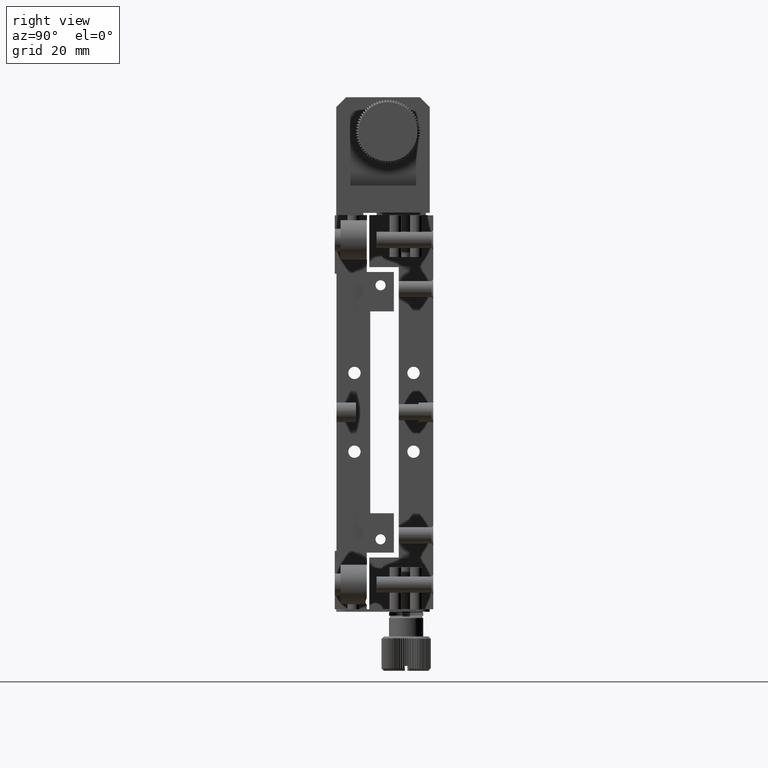
[diagram: clean part render]
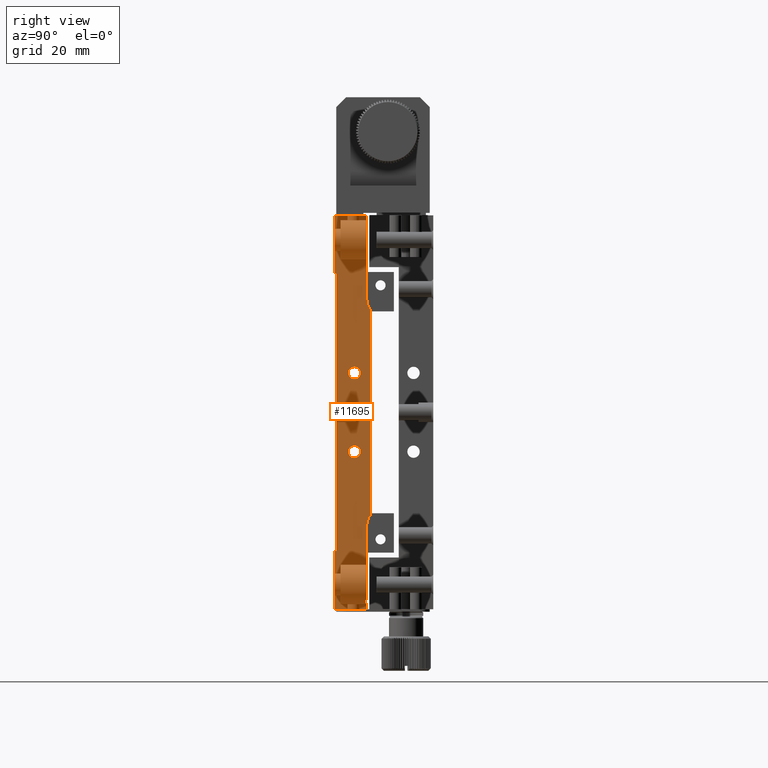
[diagram: same view with one face highlighted and labeled with its STEP entity id]
A machine part, right view. The second image highlights one B-rep face of the part: STEP entity #11695.
In plain terms, the highlighted planar face has unit normal (1, -0, 0).
Its self-contained STEP definition (entity closure, byte-faithful):
#475 = ORIENTED_EDGE ( 'NONE', *, *, #3142, .F. ) ;
#877 = DIRECTION ( 'NONE',  ( -0.000000000000000000, -0.000000000000000000, 1.000000000000000000 ) ) ;
#988 = ORIENTED_EDGE ( 'NONE', *, *, #25528, .F. ) ;
#1069 = CARTESIAN_POINT ( 'NONE',  ( 39.52852657937571479, -8.993175164426798318, 28.15000000000000213 ) ) ;
#1182 = ORIENTED_EDGE ( 'NONE', *, *, #21927, .F. ) ;
#1286 = DIRECTION ( 'NONE',  ( -1.000000000000000000, -0.000000000000000000, -0.000000000000000000 ) ) ;
#1457 = VERTEX_POINT ( 'NONE', #5814 ) ;
#1870 = VERTEX_POINT ( 'NONE', #18030 ) ;
#1893 = EDGE_LOOP ( 'NONE', ( #9945 ) ) ;
#1982 = DIRECTION ( 'NONE',  ( 0.000000000000000000, 1.000000000000000000, 0.000000000000000000 ) ) ;
#2102 = CARTESIAN_POINT ( 'NONE',  ( 39.52852657937571479, -2.843175164426796631, -22.89999999999999858 ) ) ;
#2245 = AXIS2_PLACEMENT_3D ( 'NONE', #25361, #1286, #11308 ) ;
#2332 = CIRCLE ( 'NONE', #16891, 1.249999999999987121 ) ;
#2373 = DIRECTION ( 'NONE',  ( -0.000000000000000000, -0.000000000000000000, 1.000000000000000000 ) ) ;
#2858 = VECTOR ( 'NONE', #3851, 1000.000000000000000 ) ;
#2903 = ORIENTED_EDGE ( 'NONE', *, *, #10530, .F. ) ;
#2985 = AXIS2_PLACEMENT_3D ( 'NONE', #3698, #11517, #11645 ) ;
#3142 = EDGE_CURVE ( 'NONE', #17711, #17711, #2332, .T. ) ;
#3230 = VECTOR ( 'NONE', #12874, 1000.000000000000000 ) ;
#3263 = CARTESIAN_POINT ( 'NONE',  ( 39.52852657937571479, -2.143175164426800894, 20.97386397157418614 ) ) ;
#3392 = PLANE ( 'NONE',  #7526 ) ;
#3698 = CARTESIAN_POINT ( 'NONE',  ( 39.52852657937571479, 0.1568248355732024812, -22.89999999999999858 ) ) ;
#3851 = DIRECTION ( 'NONE',  ( -0.000000000000000000, -1.000000000000000000, -0.000000000000000000 ) ) ;
#3938 = LINE ( 'NONE', #12281, #12016 ) ;
#4223 = EDGE_CURVE ( 'NONE', #23551, #16650, #5864, .T. ) ;
#4274 = CARTESIAN_POINT ( 'NONE',  ( 39.52852657937571479, 0.1568248355732024812, -40.00000000000000000 ) ) ;
#4496 = EDGE_CURVE ( 'NONE', #6538, #12901, #19895, .T. ) ;
#4499 = VECTOR ( 'NONE', #13315, 1000.000000000000000 ) ;
#4782 = AXIS2_PLACEMENT_3D ( 'NONE', #8253, #11910, #18156 ) ;
#5191 = EDGE_CURVE ( 'NONE', #1457, #25069, #19294, .T. ) ;
#5814 = CARTESIAN_POINT ( 'NONE',  ( 39.52852657937571479, -2.843175164426796631, 39.99999999999999289 ) ) ;
#5864 = LINE ( 'NONE', #22022, #24836 ) ;
#5917 = LINE ( 'NONE', #25727, #2858 ) ;
#5957 = CIRCLE ( 'NONE', #20533, 1.249999999999988010 ) ;
#6284 = LINE ( 'NONE', #22567, #21523 ) ;
#6335 = CARTESIAN_POINT ( 'NONE',  ( 39.52852657937571479, -9.343175164426799739, 28.15000000000000213 ) ) ;
#6527 = LINE ( 'NONE', #2102, #23432 ) ;
#6538 = VERTEX_POINT ( 'NONE', #9419 ) ;
#6871 = VECTOR ( 'NONE', #12379, 1000.000000000000000 ) ;
#7042 = CARTESIAN_POINT ( 'NONE',  ( 39.52852657937571479, -2.843175164426796631, -40.00000000000000711 ) ) ;
#7055 = DIRECTION ( 'NONE',  ( 1.000000000000000000, -0.000000000000000000, 0.000000000000000000 ) ) ;
#7113 = CARTESIAN_POINT ( 'NONE',  ( 39.52852657937571479, -5.343175164426797075, 8.000000000000000000 ) ) ;
#7526 = AXIS2_PLACEMENT_3D ( 'NONE', #16953, #7055, #9135 ) ;
#7783 = LINE ( 'NONE', #4274, #11550 ) ;
#8184 = VECTOR ( 'NONE', #877, 1000.000000000000000 ) ;
#8253 = CARTESIAN_POINT ( 'NONE',  ( 39.52852657937571479, 0.1568248355732024812, 22.89999999999999858 ) ) ;
#8375 = DIRECTION ( 'NONE',  ( 0.000000000000000000, 0.000000000000000000, -1.000000000000000000 ) ) ;
#8597 = DIRECTION ( 'NONE',  ( 0.000000000000000000, 0.000000000000000000, -1.000000000000000000 ) ) ;
#9064 = DIRECTION ( 'NONE',  ( 0.000000000000000000, 0.000000000000000000, -1.000000000000000000 ) ) ;
#9135 = DIRECTION ( 'NONE',  ( 0.000000000000000000, 0.000000000000000000, -1.000000000000000000 ) ) ;
#9364 = VERTEX_POINT ( 'NONE', #1069 ) ;
#9419 = CARTESIAN_POINT ( 'NONE',  ( 39.52852657937571479, -2.843175164426796631, -37.83856217223382856 ) ) ;
#9945 = ORIENTED_EDGE ( 'NONE', *, *, #14898, .F. ) ;
#10338 = ORIENTED_EDGE ( 'NONE', *, *, #17147, .F. ) ;
#10403 = ORIENTED_EDGE ( 'NONE', *, *, #5191, .F. ) ;
#10480 = ORIENTED_EDGE ( 'NONE', *, *, #15862, .F. ) ;
#10530 = EDGE_CURVE ( 'NONE', #12901, #18588, #17120, .T. ) ;
#10908 = LINE ( 'NONE', #22374, #3230 ) ;
#11308 = DIRECTION ( 'NONE',  ( 0.000000000000000000, 7.806255641895571971E-15, -1.000000000000000000 ) ) ;
#11320 = VERTEX_POINT ( 'NONE', #13151 ) ;
#11517 = DIRECTION ( 'NONE',  ( -1.000000000000000000, -0.000000000000000000, -0.000000000000000000 ) ) ;
#11550 = VECTOR ( 'NONE', #12226, 1000.000000000000000 ) ;
#11622 = EDGE_LOOP ( 'NONE', ( #475 ) ) ;
#11645 = DIRECTION ( 'NONE',  ( 0.000000000000000000, 0.000000000000000000, 1.000000000000000000 ) ) ;
#11695 = ADVANCED_FACE ( 'NONE', ( #15280, #22807, #13181 ), #3392, .F. ) ;
#11910 = DIRECTION ( 'NONE',  ( -1.000000000000000000, -0.000000000000000000, -0.000000000000000000 ) ) ;
#12003 = DIRECTION ( 'NONE',  ( -0.000000000000000000, 0.000000000000000000, -1.000000000000000000 ) ) ;
#12006 = DIRECTION ( 'NONE',  ( -0.000000000000000000, -0.000000000000000000, 1.000000000000000000 ) ) ;
#12016 = VECTOR ( 'NONE', #1982, 1000.000000000000000 ) ;
#12226 = DIRECTION ( 'NONE',  ( 0.000000000000000000, 1.000000000000000000, 0.000000000000000000 ) ) ;
#12281 = CARTESIAN_POINT ( 'NONE',  ( 39.52852657937571479, 0.1568248355732024812, 28.14999999999999858 ) ) ;
#12379 = DIRECTION ( 'NONE',  ( -0.000000000000000000, -1.925758743313507022E-18, -1.000000000000000000 ) ) ;
#12562 = CARTESIAN_POINT ( 'NONE',  ( 39.52852657937571479, -2.843175164426796631, -39.16143782776617144 ) ) ;
#12679 = CIRCLE ( 'NONE', #4782, 2.999999999999999112 ) ;
#12758 = EDGE_LOOP ( 'NONE', ( #23427, #14816, #1182, #23134, #988, #14848, #10403, #17845, #10480, #13994, #2903, #16931, #10338, #13537 ) ) ;
#12874 = DIRECTION ( 'NONE',  ( 0.000000000000000000, 0.000000000000000000, -1.000000000000000000 ) ) ;
#12901 = VERTEX_POINT ( 'NONE', #19580 ) ;
#13129 = VERTEX_POINT ( 'NONE', #16930 ) ;
#13151 = CARTESIAN_POINT ( 'NONE',  ( 39.52852657937571479, -5.343175164426797075, 6.750000000000012434 ) ) ;
#13181 = FACE_BOUND ( 'NONE', #11622, .T. ) ;
#13315 = DIRECTION ( 'NONE',  ( -0.000000000000000000, -1.000000000000000000, -0.000000000000000000 ) ) ;
#13537 = ORIENTED_EDGE ( 'NONE', *, *, #4223, .T. ) ;
#13799 = EDGE_CURVE ( 'NONE', #18588, #17823, #17990, .T. ) ;
#13839 = VERTEX_POINT ( 'NONE', #21898 ) ;
#13994 = ORIENTED_EDGE ( 'NONE', *, *, #13799, .F. ) ;
#14285 = VECTOR ( 'NONE', #2373, 1000.000000000000000 ) ;
#14492 = DIRECTION ( 'NONE',  ( -1.000000000000000000, -0.000000000000000000, -0.000000000000000000 ) ) ;
#14816 = ORIENTED_EDGE ( 'NONE', *, *, #24201, .F. ) ;
#14848 = ORIENTED_EDGE ( 'NONE', *, *, #22518, .F. ) ;
#14898 = EDGE_CURVE ( 'NONE', #11320, #11320, #5957, .T. ) ;
#14902 = CARTESIAN_POINT ( 'NONE',  ( 39.52852657937571479, 0.1568248355732024812, 39.99999999999999289 ) ) ;
#15280 = FACE_OUTER_BOUND ( 'NONE', #12758, .T. ) ;
#15862 = EDGE_CURVE ( 'NONE', #17823, #21260, #12679, .T. ) ;
#16444 = CARTESIAN_POINT ( 'NONE',  ( 39.52852657937571479, -5.343175164426797075, -8.000000000000000000 ) ) ;
#16650 = VERTEX_POINT ( 'NONE', #7042 ) ;
#16891 = AXIS2_PLACEMENT_3D ( 'NONE', #16444, #14492, #8597 ) ;
#16892 = DIRECTION ( 'NONE',  ( -1.000000000000000000, -0.000000000000000000, -0.000000000000000000 ) ) ;
#16930 = CARTESIAN_POINT ( 'NONE',  ( 39.52852657937571479, -9.343175164426799739, -40.00000000000000711 ) ) ;
#16931 = ORIENTED_EDGE ( 'NONE', *, *, #4496, .F. ) ;
#16953 = CARTESIAN_POINT ( 'NONE',  ( 39.52852657937571479, 0.1568248355732024812, -22.89999999999999858 ) ) ;
#17120 = CIRCLE ( 'NONE', #2985, 2.999999999999995559 ) ;
#17147 = EDGE_CURVE ( 'NONE', #23551, #6538, #20214, .T. ) ;
#17711 = VERTEX_POINT ( 'NONE', #23702 ) ;
#17823 = VERTEX_POINT ( 'NONE', #3263 ) ;
#17845 = ORIENTED_EDGE ( 'NONE', *, *, #20050, .F. ) ;
#17990 = LINE ( 'NONE', #23724, #14285 ) ;
#18030 = CARTESIAN_POINT ( 'NONE',  ( 39.52852657937571479, -9.343175164426799739, -28.15000000000000213 ) ) ;
#18156 = DIRECTION ( 'NONE',  ( 0.000000000000000000, 0.000000000000000000, 1.000000000000000000 ) ) ;
#18588 = VERTEX_POINT ( 'NONE', #21546 ) ;
#19064 = LINE ( 'NONE', #24485, #6871 ) ;
#19076 = EDGE_CURVE ( 'NONE', #9364, #13839, #19064, .T. ) ;
#19185 = CARTESIAN_POINT ( 'NONE',  ( 39.52852657937571479, -2.843175164426796631, 22.89999999999999503 ) ) ;
#19294 = LINE ( 'NONE', #14902, #4499 ) ;
#19447 = VERTEX_POINT ( 'NONE', #6335 ) ;
#19580 = CARTESIAN_POINT ( 'NONE',  ( 39.52852657937571479, -2.843175164426794854, -22.89999999999999858 ) ) ;
#19895 = LINE ( 'NONE', #20802, #8184 ) ;
#20050 = EDGE_CURVE ( 'NONE', #21260, #1457, #6527, .T. ) ;
#20214 = CIRCLE ( 'NONE', #2245, 1.000000000000007772 ) ;
#20533 = AXIS2_PLACEMENT_3D ( 'NONE', #7113, #16892, #9064 ) ;
#20802 = CARTESIAN_POINT ( 'NONE',  ( 39.52852657937571479, -2.843175164426796631, -22.89999999999999858 ) ) ;
#21209 = CARTESIAN_POINT ( 'NONE',  ( 39.52852657937571479, -9.343175164426799739, 39.99999999999999289 ) ) ;
#21260 = VERTEX_POINT ( 'NONE', #19185 ) ;
#21523 = VECTOR ( 'NONE', #8375, 1000.000000000000000 ) ;
#21546 = CARTESIAN_POINT ( 'NONE',  ( 39.52852657937571479, -2.143175164426796453, -20.97386397157418614 ) ) ;
#21898 = CARTESIAN_POINT ( 'NONE',  ( 39.52852657937571479, -8.993175164426798318, -28.15000000000000213 ) ) ;
#21927 = EDGE_CURVE ( 'NONE', #13839, #1870, #5917, .T. ) ;
#22022 = CARTESIAN_POINT ( 'NONE',  ( 39.52852657937571479, -2.843175164426796631, 0.000000000000000000 ) ) ;
#22374 = CARTESIAN_POINT ( 'NONE',  ( 39.52852657937571479, -9.343175164426799739, -22.89999999999999858 ) ) ;
#22518 = EDGE_CURVE ( 'NONE', #25069, #19447, #6284, .T. ) ;
#22567 = CARTESIAN_POINT ( 'NONE',  ( 39.52852657937571479, -9.343175164426799739, -22.89999999999999858 ) ) ;
#22807 = FACE_BOUND ( 'NONE', #1893, .T. ) ;
#23134 = ORIENTED_EDGE ( 'NONE', *, *, #19076, .F. ) ;
#23427 = ORIENTED_EDGE ( 'NONE', *, *, #24102, .F. ) ;
#23432 = VECTOR ( 'NONE', #12006, 1000.000000000000000 ) ;
#23551 = VERTEX_POINT ( 'NONE', #12562 ) ;
#23702 = CARTESIAN_POINT ( 'NONE',  ( 39.52852657937571479, -5.343175164426797075, -9.249999999999987566 ) ) ;
#23724 = CARTESIAN_POINT ( 'NONE',  ( 39.52852657937571479, -2.143175164426796453, -22.89999999999999858 ) ) ;
#24102 = EDGE_CURVE ( 'NONE', #13129, #16650, #7783, .T. ) ;
#24201 = EDGE_CURVE ( 'NONE', #1870, #13129, #10908, .T. ) ;
#24485 = CARTESIAN_POINT ( 'NONE',  ( 39.52852657937571479, -8.993175164426798318, -28.15000000000000213 ) ) ;
#24836 = VECTOR ( 'NONE', #12003, 1000.000000000000000 ) ;
#25069 = VERTEX_POINT ( 'NONE', #21209 ) ;
#25361 = CARTESIAN_POINT ( 'NONE',  ( 39.52852657937571479, -2.093175164426797519, -38.50000000000000000 ) ) ;
#25528 = EDGE_CURVE ( 'NONE', #19447, #9364, #3938, .T. ) ;
#25727 = CARTESIAN_POINT ( 'NONE',  ( 39.52852657937571479, 0.1568248355732024812, -28.15000000000000213 ) ) ;